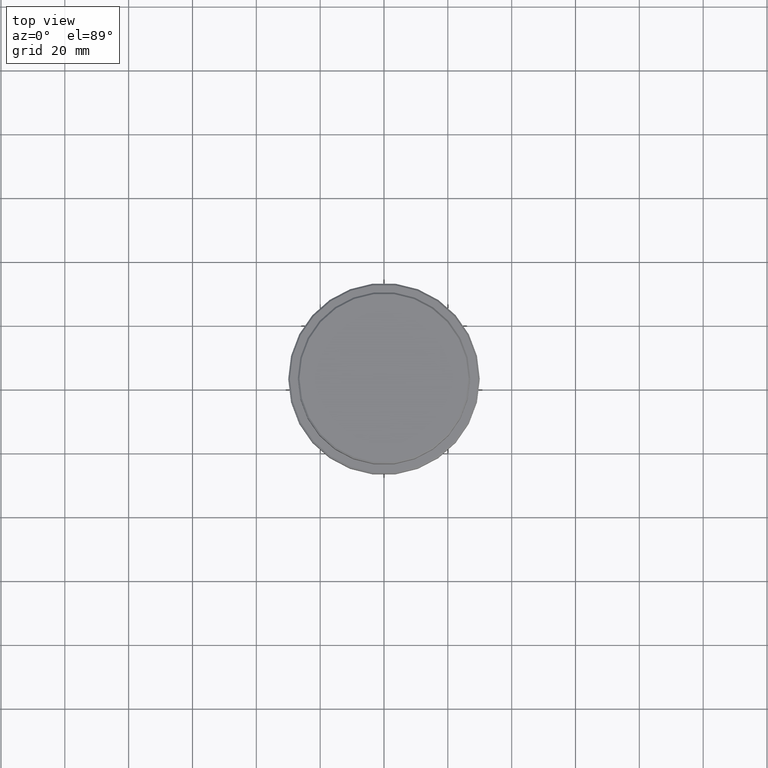
[diagram: clean part render]
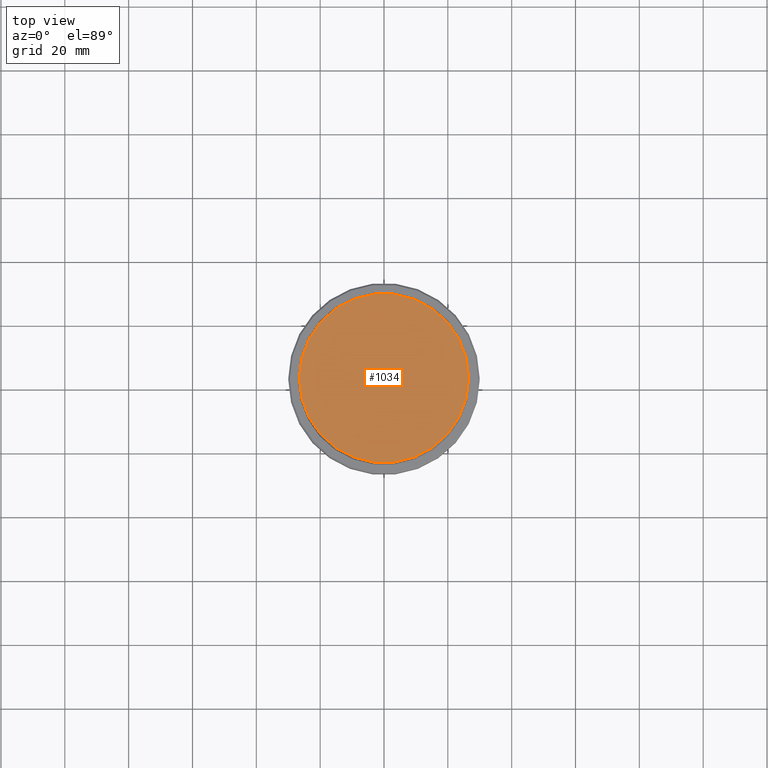
[diagram: same view with one face highlighted and labeled with its STEP entity id]
A machine part, top view. The second image highlights one B-rep face of the part: STEP entity #1034.
In plain terms, the highlighted planar face has unit normal (0, -0, 1).
Its self-contained STEP definition (entity closure, byte-faithful):
#164 = ORIENTED_EDGE ( 'NONE', *, *, #391, .T. ) ;
#191 = CARTESIAN_POINT ( 'NONE',  ( 0.000000000000000000, 0.000000000000000000, 0.000000000000000000 ) ) ;
#284 = EDGE_CURVE ( 'NONE', #711, #1061, #542, .T. ) ;
#287 = EDGE_LOOP ( 'NONE', ( #768, #164 ) ) ;
#364 = CIRCLE ( 'NONE', #944, 26.49999999999996803 ) ;
#391 = EDGE_CURVE ( 'NONE', #1061, #711, #364, .T. ) ;
#429 = PLANE ( 'NONE',  #769 ) ;
#454 = AXIS2_PLACEMENT_3D ( 'NONE', #599, #1153, #500 ) ;
#500 = DIRECTION ( 'NONE',  ( 1.000000000000000000, 0.000000000000000000, 0.000000000000000000 ) ) ;
#512 = DIRECTION ( 'NONE',  ( -0.000000000000000000, -0.000000000000000000, 1.000000000000000000 ) ) ;
#515 = DIRECTION ( 'NONE',  ( 0.000000000000000000, -0.000000000000000000, 1.000000000000000000 ) ) ;
#542 = CIRCLE ( 'NONE', #454, 26.49999999999996803 ) ;
#599 = CARTESIAN_POINT ( 'NONE',  ( 0.000000000000000000, 0.000000000000000000, 0.000000000000000000 ) ) ;
#673 = CARTESIAN_POINT ( 'NONE',  ( -26.49999999999996803, 0.000000000000000000, 0.000000000000000000 ) ) ;
#711 = VERTEX_POINT ( 'NONE', #673 ) ;
#768 = ORIENTED_EDGE ( 'NONE', *, *, #284, .T. ) ;
#769 = AXIS2_PLACEMENT_3D ( 'NONE', #191, #515, #941 ) ;
#921 = CARTESIAN_POINT ( 'NONE',  ( 0.000000000000000000, 0.000000000000000000, 0.000000000000000000 ) ) ;
#934 = DIRECTION ( 'NONE',  ( 1.000000000000000000, 0.000000000000000000, 0.000000000000000000 ) ) ;
#941 = DIRECTION ( 'NONE',  ( 1.000000000000000000, 0.000000000000000000, 0.000000000000000000 ) ) ;
#944 = AXIS2_PLACEMENT_3D ( 'NONE', #921, #512, #934 ) ;
#1034 = ADVANCED_FACE ( 'NONE', ( #1178 ), #429, .T. ) ;
#1050 = CARTESIAN_POINT ( 'NONE',  ( 26.49999999999996803, 3.275930187719167580E-15, 0.000000000000000000 ) ) ;
#1061 = VERTEX_POINT ( 'NONE', #1050 ) ;
#1153 = DIRECTION ( 'NONE',  ( -0.000000000000000000, -0.000000000000000000, 1.000000000000000000 ) ) ;
#1178 = FACE_OUTER_BOUND ( 'NONE', #287, .T. ) ;